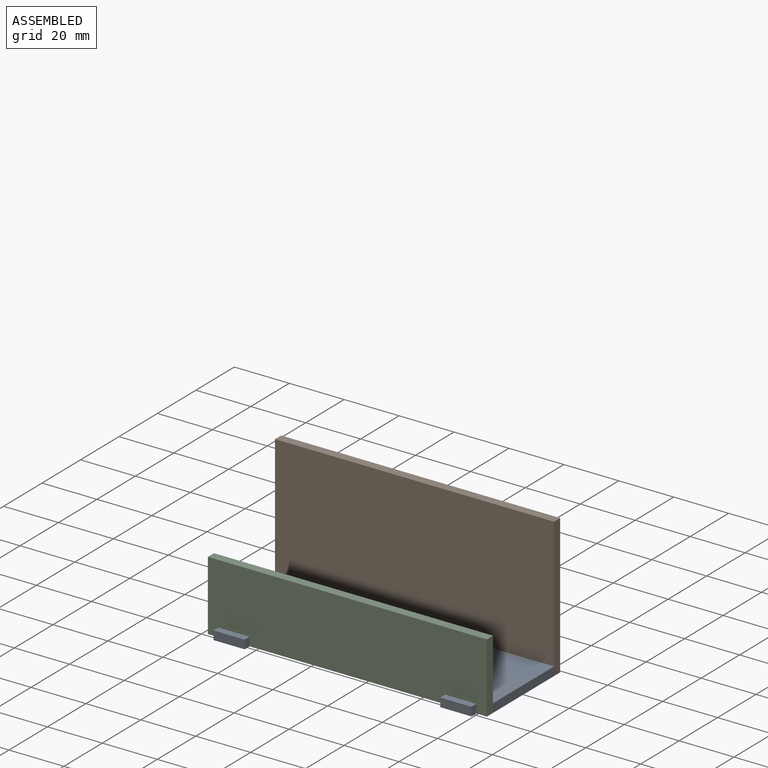
[diagram: assembled view]
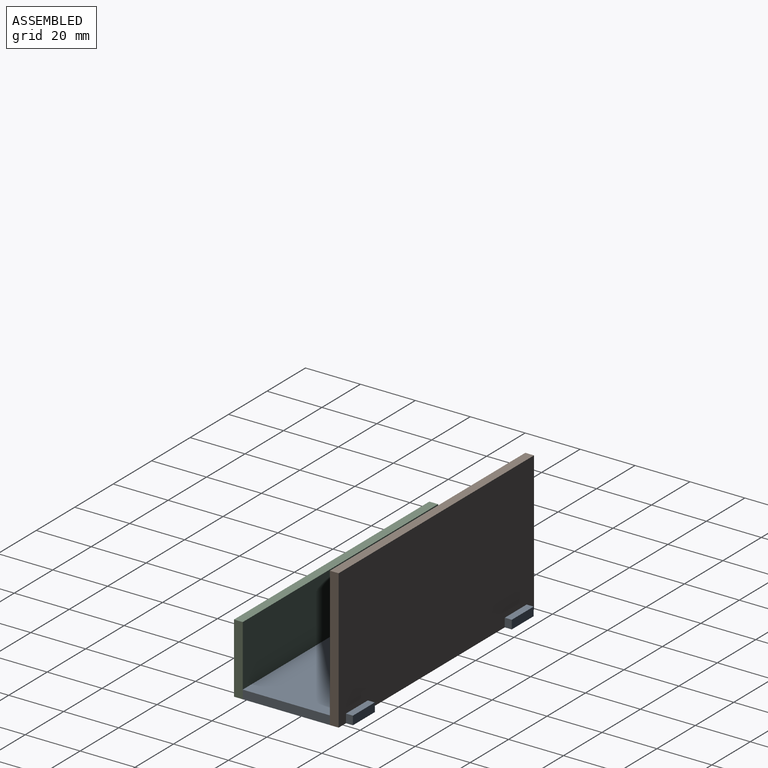
[diagram: assembled view, second angle]
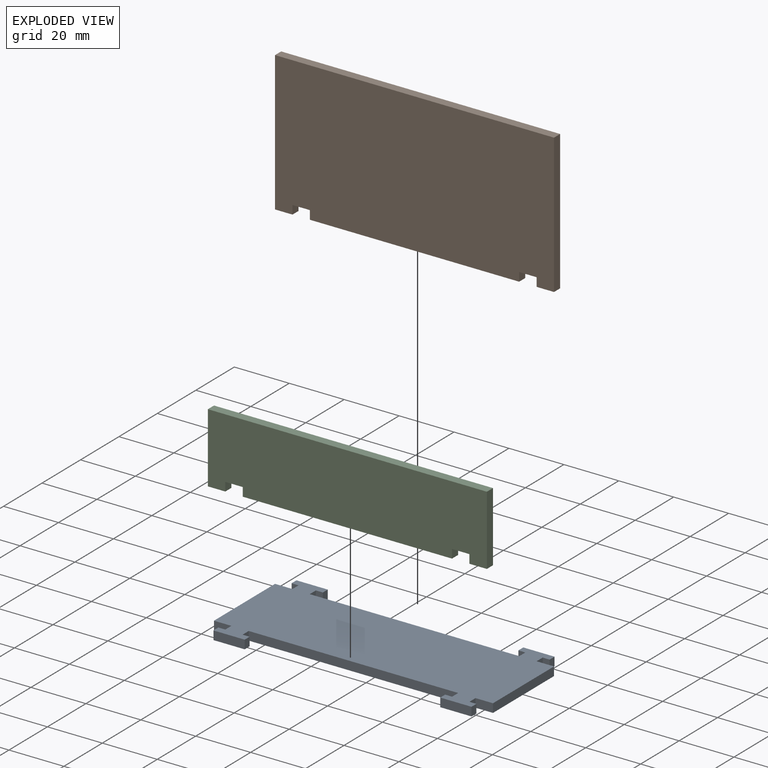
[diagram: exploded view]
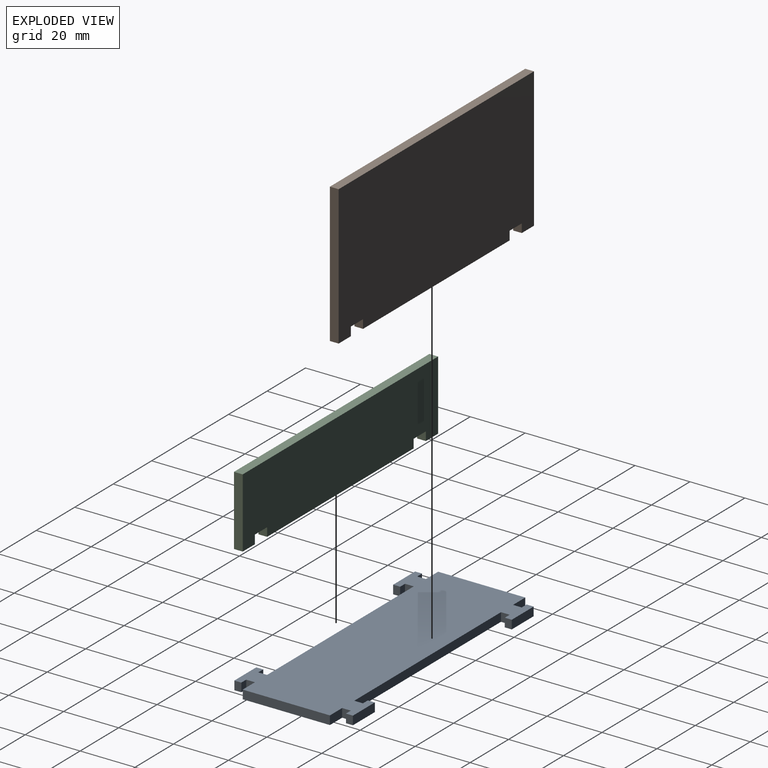
[diagram: exploded view, second angle]
ASSEMBLY  parts=3 mates=6
PART A: 38 faces, bbox 101.6x43.2x3.2 mm
  f0: plane 3.18x3.18mm, normal (1,0,0), area 10.1mm2, adj f1,f35,f36,f37
  f1: plane 76.3x3.18mm, normal (0,-1,0), area 242.3mm2, adj f0,f2,f36,f37
  f2: plane 3.18x3.18mm, normal (-1,0,0), area 10.1mm2, adj f1,f3,f36,f37
  f3: plane 3.18x2.54mm, normal (0,1,0), area 8.1mm2, adj f2,f4,f36,f37
  f4: plane 3.18x2.54mm, normal (-1,0,0), area 8.1mm2, adj f3,f5,f36,f37
  f5: plane 11.38x3.18mm, normal (0,-1,0), area 36.1mm2, adj f4,f6,f36,f37
  f6: plane 3.18x2.54mm, normal (1,0,0), area 8.1mm2, adj f5,f7,f36,f37
  f7: plane 3.18x2.54mm, normal (0,1,0), area 8.1mm2, adj f6,f8,f36,f37
  f8: plane 3.18x3.18mm, normal (1,0,0), area 10.1mm2, adj f7,f9,f36,f37
  f9: plane 6.35x3.18mm, normal (0,-1,0), area 20.2mm2, adj f8,f10,f36,f37
  f10: plane 31.75x3.18mm, normal (1,0,0), area 100.8mm2, adj f9,f11,f36,f37
  f11: plane 6.35x3.18mm, normal (0,1,0), area 20.2mm2, adj f10,f12,f36,f37
  f12: plane 3.18x3.18mm, normal (1,0,0), area 10.1mm2, adj f11,f13,f36,f37
  f13: plane 3.18x2.54mm, normal (0,-1,0), area 8.1mm2, adj f12,f14,f36,f37
  f14: plane 3.18x2.54mm, normal (1,0,0), area 8.1mm2, adj f13,f15,f36,f37
  f15: plane 11.38x3.18mm, normal (0,1,0), area 36.1mm2, adj f14,f16,f36,f37
  f16: plane 3.18x2.54mm, normal (-1,0,0), area 8.1mm2, adj f15,f17,f36,f37
  f17: plane 3.18x2.54mm, normal (0,-1,0), area 8.1mm2, adj f16,f18,f36,f37
  f18: plane 3.18x3.18mm, normal (-1,0,0), area 10.1mm2, adj f17,f19,f36,f37
  f19: plane 76.3x3.18mm, normal (0,1,0), area 242.3mm2, adj f18,f20,f36,f37
  f20: plane 3.18x3.18mm, normal (1,0,0), area 10.1mm2, adj f19,f21,f36,f37
  f21: plane 3.18x2.54mm, normal (0,-1,0), area 8.1mm2, adj f20,f22,f36,f37
  f22: plane 3.18x2.54mm, normal (1,0,0), area 8.1mm2, adj f21,f23,f36,f37
  f23: plane 11.38x3.18mm, normal (0,1,0), area 36.1mm2, adj f22,f24,f36,f37
  f24: plane 3.18x2.54mm, normal (-1,0,0), area 8.1mm2, adj f23,f25,f36,f37
  f25: plane 3.18x2.54mm, normal (0,-1,0), area 8.1mm2, adj f24,f26,f36,f37
  f26: plane 3.18x3.18mm, normal (-1,0,0), area 10.1mm2, adj f25,f27,f36,f37
  f27: plane 6.35x3.18mm, normal (0,1,0), area 20.2mm2, adj f26,f28,f36,f37
  f28: plane 31.75x3.18mm, normal (-1,0,0), area 100.8mm2, adj f27,f29,f36,f37
  f29: plane 6.35x3.18mm, normal (0,-1,0), area 20.2mm2, adj f28,f30,f36,f37
  f30: plane 3.18x3.18mm, normal (-1,0,0), area 10.1mm2, adj f29,f31,f36,f37
  f31: plane 3.18x2.54mm, normal (0,1,0), area 8.1mm2, adj f30,f32,f36,f37
  f32: plane 3.18x2.54mm, normal (-1,0,0), area 8.1mm2, adj f31,f33,f36,f37
  f33: plane 11.38x3.18mm, normal (0,-1,0), area 36.1mm2, adj f32,f34,f36,f37
  f34: plane 3.18x2.54mm, normal (1,0,0), area 8.1mm2, adj f33,f35,f36,f37
  f35: plane 3.18x2.54mm, normal (0,1,0), area 8.1mm2, adj f0,f34,f36,f37
  f36: plane 101.6x43.18mm, normal (0,0,1), area 3421.4mm2, adj f0,f1,f2,f3,f4,f5,f6,f7
  f37: plane 101.6x43.18mm, normal (0,0,-1), area 3421.4mm2, adj f0,f1,f2,f3,f4,f5,f6,f7
PART B: 14 faces, bbox 101.6x3.2x50.8 mm
  f0: plane 101.6x3.18mm, normal (0,0,1), area 322.6mm2, adj f1,f11,f12,f13
  f1: plane 50.8x3.18mm, normal (-1,0,0), area 161.3mm2, adj f0,f2,f12,f13
  f2: plane 6.35x3.18mm, normal (0,0,-1), area 20.2mm2, adj f1,f3,f12,f13
  f3: plane 3.18x3.18mm, normal (1,0,0), area 10.1mm2, adj f2,f4,f12,f13
  f4: plane 6.35x3.18mm, normal (0,0,-1), area 20.2mm2, adj f3,f5,f12,f13
  f5: plane 3.18x3.18mm, normal (-1,0,0), area 10.1mm2, adj f4,f6,f12,f13
  f6: plane 76.2x3.18mm, normal (0,0,-1), area 241.9mm2, adj f5,f7,f12,f13
  f7: plane 3.18x3.18mm, normal (1,0,0), area 10.1mm2, adj f6,f8,f12,f13
  f8: plane 6.35x3.18mm, normal (0,0,-1), area 20.2mm2, adj f7,f9,f12,f13
  f9: plane 3.18x3.18mm, normal (-1,0,0), area 10.1mm2, adj f8,f10,f12,f13
  f10: plane 6.35x3.18mm, normal (0,0,-1), area 20.2mm2, adj f9,f11,f12,f13
  f11: plane 50.8x3.18mm, normal (1,0,0), area 161.3mm2, adj f0,f10,f12,f13
  f12: plane 101.6x50.8mm, normal (0,-1,0), area 5121mm2, adj f0,f1,f2,f3,f4,f5,f6,f7
  f13: plane 101.6x50.8mm, normal (0,1,0), area 5121mm2, adj f0,f1,f2,f3,f4,f5,f6,f7
PART C: 14 faces, bbox 101.6x3.2x25.4 mm
  f0: plane 101.6x3.18mm, normal (0,0,1), area 322.6mm2, adj f1,f11,f12,f13
  f1: plane 25.4x3.18mm, normal (-1,0,0), area 80.6mm2, adj f0,f2,f12,f13
  f2: plane 6.35x3.18mm, normal (0,0,-1), area 20.2mm2, adj f1,f3,f12,f13
  f3: plane 3.18x3.18mm, normal (1,0,0), area 10.1mm2, adj f2,f4,f12,f13
  f4: plane 6.35x3.18mm, normal (0,0,-1), area 20.2mm2, adj f3,f5,f12,f13
  f5: plane 3.18x3.18mm, normal (-1,0,0), area 10.1mm2, adj f4,f6,f12,f13
  f6: plane 76.2x3.18mm, normal (0,0,-1), area 241.9mm2, adj f5,f7,f12,f13
  f7: plane 3.18x3.18mm, normal (1,0,0), area 10.1mm2, adj f6,f8,f12,f13
  f8: plane 6.35x3.18mm, normal (0,0,-1), area 20.2mm2, adj f7,f9,f12,f13
  f9: plane 3.18x3.18mm, normal (-1,0,0), area 10.1mm2, adj f8,f10,f12,f13
  f10: plane 6.35x3.18mm, normal (0,0,-1), area 20.2mm2, adj f9,f11,f12,f13
  f11: plane 25.4x3.18mm, normal (1,0,0), area 80.6mm2, adj f0,f10,f12,f13
  f12: plane 101.6x25.4mm, normal (0,-1,0), area 2540.3mm2, adj f0,f1,f2,f3,f4,f5,f6,f7
  f13: plane 101.6x25.4mm, normal (0,1,0), area 2540.3mm2, adj f0,f1,f2,f3,f4,f5,f6,f7
PLACE A t=(34.7,-83.07,-107.17)mm
PLACE B t=(-16.1,-64.02,-56.37)mm
PLACE C t=(-16.1,-98.94,-81.77)mm
MATE planar B.f4 <-> A.f36  axis (0,0,-1) through (-6.58,-65.6,-104)mm
MATE planar C.f6 <-> A.f37  axis (0,0,-1) through (34.7,-100.53,-107.17)mm
MATE planar A.f12 <-> B.f9  axis (1,0,0) through (79.15,-65.6,-105.59)mm
MATE planar A.f19 <-> B.f12  axis (0,1,0) through (34.7,-67.19,-105.59)mm
MATE planar A.f1 <-> C.f13  axis (0,-1,0) through (34.7,-98.94,-105.59)mm
MATE planar C.f9 <-> A.f8  axis (-1,0,0) through (79.15,-100.53,-105.59)mm
